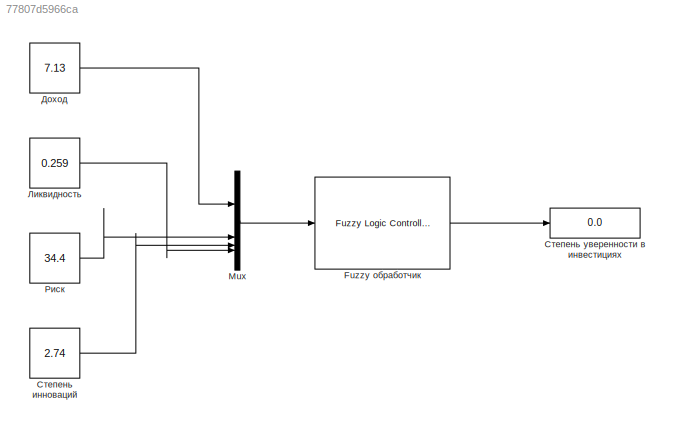
MODEL slx_77807d5966ca
KIND model
CONFIG AbsTol = auto
CONFIG EnableMultiTasking = off
CONFIG FixedStep = auto
CONFIG MaxStep = auto
CONFIG MinStep = auto
CONFIG PreLoadFcn = boiler_simulink=readfis('<userpath>\OneDrive\Рабочий стол\Boiler.fis');
CONFIG RelTol = 1e-3
CONFIG SampleTimeConstraint = Unconstrained
CONFIG SolverName = VariableStepAuto
CONFIG StartTime = 0.0
CONFIG StopTime = 10.0
BLOCK [Reference] Fuzzy обработчик  REF=fuzblock/Fuzzy Logic   (lib defined in mdl_858b3b3e7478)
Controller
  SourceBlock = fuzblock/Fuzzy Logic \nController
  SourceType = Fuzzy Inference System
BLOCK [Mux] Mux
  DisplayOption = bar
BLOCK [Constant] Доход
  Value = 7.13
BLOCK [Constant] Ликвидность
  Value = 0.259
BLOCK [Constant] Риск
  Value = 34.4
BLOCK [Constant] Степень инноваций
  Value = 2.74
BLOCK [Display] Степень уверенности в инвестициях
  Decimation = 1
LINE Fuzzy обработчик:1 -> Степень уверенности в инвестициях:1
LINE Mux:1 -> Fuzzy обработчик:1
LINE Доход:1 -> Mux:1
LINE Ликвидность:1 -> Mux:4
LINE Риск:1 -> Mux:2
LINE Степень инноваций:1 -> Mux:3
